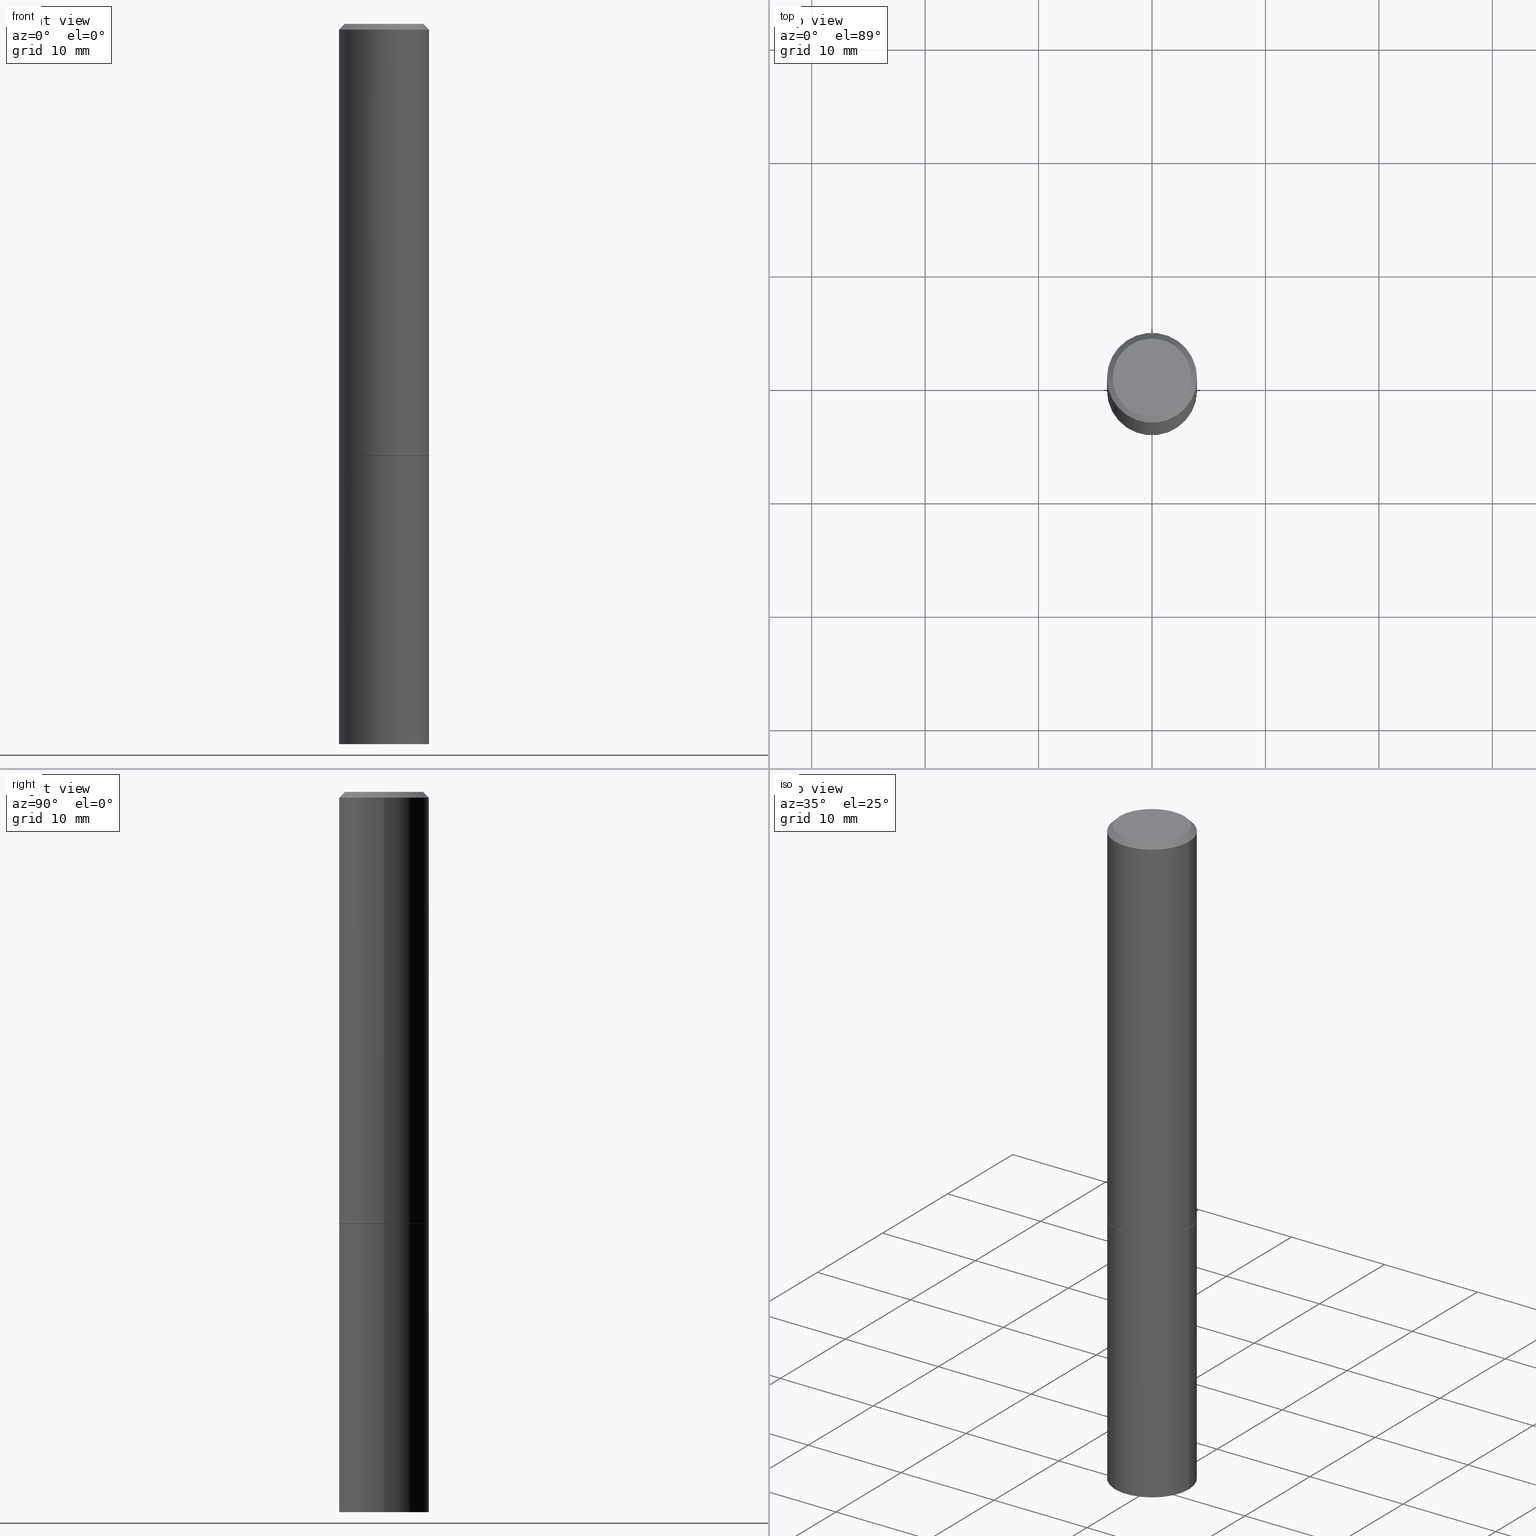
[diagram: canonical four-view strip — front | top / right | iso, engineering-drawing reading convention]
A machine part, canonical four-view strip (front | top / right | iso — engineering-drawing reading convention). The complete STEP part file that produces these views, byte-faithful:
ISO-10303-21;
HEADER;
FILE_DESCRIPTION (( 'STEP AP203' ),
    '1' );
FILE_NAME ('72973.STEP',
    '2024-02-29T05:59:20',
    ( '' ),
    ( '' ),
    'SwSTEP 2.0',
    'SolidWorks 2023',
    '' );
FILE_SCHEMA (( 'CONFIG_CONTROL_DESIGN' ));
ENDSEC;

DATA;
#1 = EDGE_CURVE ( 'NONE', #314, #195, #307, .T. ) ;
#2 = FACE_OUTER_BOUND ( 'NONE', #229, .T. ) ;
#3 = DIRECTION ( 'NONE',  ( -2.445468806185136597E-29, 3.491481338843145583E-15, 1.000000000000000000 ) ) ;
#4 = CARTESIAN_POINT ( 'NONE',  ( 4.890937612370281041E-31, -6.982962677686302702E-17, -0.02000000000000003511 ) ) ;
#5 = CONICAL_SURFACE ( 'NONE', #125, 0.1552499999999999991, 0.7853981633974141952 ) ;
#6 = FACE_OUTER_BOUND ( 'NONE', #188, .T. ) ;
#7 = DIRECTION ( 'NONE',  ( 0.000000000000000000, 0.000000000000000000, 1.000000000000000000 ) ) ;
#8 = APPROVAL_ROLE ( '' ) ;
#9 = ORIENTED_EDGE ( 'NONE', *, *, #219, .F. ) ;
#10 = AXIS2_PLACEMENT_3D ( 'NONE', #289, #342, #121 ) ;
#11 = UNCERTAINTY_MEASURE_WITH_UNIT (LENGTH_MEASURE( 1.000000000000000082E-05 ), #74, 'distance_accuracy_value', 'NONE');
#12 = ORIENTED_EDGE ( 'NONE', *, *, #340, .T. ) ;
#13 = ORIENTED_EDGE ( 'NONE', *, *, #230, .T. ) ;
#14 = CC_DESIGN_DATE_AND_TIME_ASSIGNMENT ( #100, #322, ( #20 ) ) ;
#15 = PERSON_AND_ORGANIZATION ( #155, #24 ) ;
#16 = EDGE_LOOP ( 'NONE', ( #225, #65, #130, #18 ) ) ;
#17 = CIRCLE ( 'NONE', #282, 0.1562500000000000000 ) ;
#18 = ORIENTED_EDGE ( 'NONE', *, *, #356, .F. ) ;
#19 = MANIFOLD_SOLID_BREP ( 'Body-Move/Copy2[2]', #71 ) ;
#20 = PRODUCT_DEFINITION ( 'UNKNOWN', '', #238, #66 ) ;
#21 = LINE ( 'NONE', #332, #179 ) ;
#22 = CARTESIAN_POINT ( 'NONE',  ( 0.000000000000000000, 0.000000000000000000, 0.000000000000000000 ) ) ;
#23 = DIRECTION ( 'NONE',  ( -0.7071067811865466846, 2.468850131082247989E-15, -0.7071067811865483499 ) ) ;
#24 = ORGANIZATION ( 'UNSPECIFIED', 'UNSPECIFIED', '' ) ;
#25 = PERSON_AND_ORGANIZATION ( #155, #24 ) ;
#26 = ORIENTED_EDGE ( 'NONE', *, *, #55, .F. ) ;
#27 = FACE_OUTER_BOUND ( 'NONE', #355, .T. ) ;
#28 = DIRECTION ( 'NONE',  ( -1.000000000000000000, 6.982962677686267499E-15, 0.000000000000000000 ) ) ;
#29 = AXIS2_PLACEMENT_3D ( 'NONE', #203, #175, #285 ) ;
#30 = DIRECTION ( 'NONE',  ( -2.445468806185136597E-29, 3.491481338843145583E-15, 1.000000000000000000 ) ) ;
#31 = DIRECTION ( 'NONE',  ( 1.000000000000000000, -6.982962677686266711E-15, 4.876176775795936353E-29 ) ) ;
#32 = DIRECTION ( 'NONE',  ( -2.445468806185136877E-29, 3.491481338843145188E-15, 1.000000000000000000 ) ) ;
#33 = FACE_OUTER_BOUND ( 'NONE', #16, .T. ) ;
#34 = PERSON_AND_ORGANIZATION_ROLE ( 'creator' ) ;
#35 = ORIENTED_EDGE ( 'NONE', *, *, #292, .F. ) ;
#36 = EDGE_CURVE ( 'NONE', #221, #69, #79, .T. ) ;
#37 = EDGE_LOOP ( 'NONE', ( #268, #164, #311, #252 ) ) ;
#38 = CONICAL_SURFACE ( 'NONE', #317, 0.1562499999999998335, 0.7853981633974471688 ) ;
#39 = CC_DESIGN_APPROVAL ( #365, ( #20 ) ) ;
#40 = PRODUCT_DEFINITION_SHAPE ( 'NONE', 'NONE',  #20 ) ;
#41 = CC_DESIGN_PERSON_AND_ORGANIZATION_ASSIGNMENT ( #302, #247, ( #298 ) ) ;
#42 = ORIENTED_EDGE ( 'NONE', *, *, #91, .F. ) ;
#43 = CALENDAR_DATE ( 2024, 29, 2 ) ;
#44 = ORIENTED_EDGE ( 'NONE', *, *, #57, .T. ) ;
#45 =( LENGTH_UNIT ( ) NAMED_UNIT ( * ) SI_UNIT ( $, .METRE. ) );
#46 = AXIS2_PLACEMENT_3D ( 'NONE', #281, #284, #48 ) ;
#47 =( GEOMETRIC_REPRESENTATION_CONTEXT ( 3 ) GLOBAL_UNCERTAINTY_ASSIGNED_CONTEXT ( ( #11 ) ) GLOBAL_UNIT_ASSIGNED_CONTEXT ( ( #74, #267, #129 ) ) REPRESENTATION_CONTEXT ( 'NONE', 'WORKASPACE' ) );
#48 = DIRECTION ( 'NONE',  ( 1.000000000000000000, -6.982962677686269077E-15, 0.000000000000000000 ) ) ;
#49 = DIRECTION ( 'NONE',  ( -2.445468806185136597E-29, 3.491481338843145583E-15, 1.000000000000000000 ) ) ;
#50 = CARTESIAN_POINT ( 'NONE',  ( 0.1362499999999998435, -1.038262645562516941E-15, 4.268512490107368508E-18 ) ) ;
#51 = CIRCLE ( 'NONE', #306, 0.1362499999999998435 ) ;
#52 = DIRECTION ( 'NONE',  ( -2.445468806185136597E-29, 3.491481338843145583E-15, 1.000000000000000000 ) ) ;
#53 = APPROVAL_PERSON_ORGANIZATION ( #25, #93, #358 ) ;
#54 = PLANE ( 'NONE',  #264 ) ;
#55 = EDGE_CURVE ( 'NONE', #301, #314, #115, .T. ) ;
#56 = CARTESIAN_POINT ( 'NONE',  ( 3.668203209277704895E-29, -5.237222008264718177E-15, -1.500000000000000222 ) ) ;
#57 = EDGE_CURVE ( 'NONE', #352, #163, #172, .T. ) ;
#58 = DIRECTION ( 'NONE',  ( 1.000000000000000000, -6.982962677686268288E-15, 0.000000000000000000 ) ) ;
#59 = VECTOR ( 'NONE', #277, 39.37007874015748143 ) ;
#60 = CC_DESIGN_APPROVAL ( #93, ( #198 ) ) ;
#61 = DIRECTION ( 'NONE',  ( -2.445468806185136597E-29, 3.491481338843145583E-15, 1.000000000000000000 ) ) ;
#62 = DIRECTION ( 'NONE',  ( -2.445468806185136597E-29, 3.491481338843145583E-15, 1.000000000000000000 ) ) ;
#63 = DIRECTION ( 'NONE',  ( -2.445468806185136597E-29, 3.491481338843145583E-15, 1.000000000000000000 ) ) ;
#64 = COORDINATED_UNIVERSAL_TIME_OFFSET ( 5, 0, .BEHIND. ) ;
#65 = ORIENTED_EDGE ( 'NONE', *, *, #83, .T. ) ;
#66 = DESIGN_CONTEXT ( 'detailed design', #166, 'design' ) ;
#67 = ORIENTED_EDGE ( 'NONE', *, *, #80, .F. ) ;
#68 = DIRECTION ( 'NONE',  ( -2.445468806185136597E-29, 3.491481338843145583E-15, 1.000000000000000000 ) ) ;
#69 = VERTEX_POINT ( 'NONE', #113 ) ;
#70 = CC_DESIGN_SECURITY_CLASSIFICATION ( #198, ( #238 ) ) ;
#71 = CLOSED_SHELL ( 'NONE', ( #280, #145, #176, #152, #205, #181, #178, #170 ) ) ;
#72 = CC_DESIGN_APPROVAL ( #319, ( #238 ) ) ;
#73 = VERTEX_POINT ( 'NONE', #337 ) ;
#74 =( CONVERSION_BASED_UNIT ( 'INCH', #156 ) LENGTH_UNIT ( ) NAMED_UNIT ( #303 ) );
#75 = ORIENTED_EDGE ( 'NONE', *, *, #83, .F. ) ;
#76 = CIRCLE ( 'NONE', #207, 0.1562500000000000000 ) ;
#77 = CALENDAR_DATE ( 2024, 29, 2 ) ;
#78 = DIRECTION ( 'NONE',  ( -2.445468806185136877E-29, 3.491481338843145188E-15, 1.000000000000000000 ) ) ;
#79 = LINE ( 'NONE', #111, #147 ) ;
#80 = EDGE_CURVE ( 'NONE', #301, #187, #21, .T. ) ;
#81 = FACE_OUTER_BOUND ( 'NONE', #214, .T. ) ;
#82 = VECTOR ( 'NONE', #23, 39.37007874015748143 ) ;
#83 = EDGE_CURVE ( 'NONE', #330, #221, #192, .T. ) ;
#84 = FACE_OUTER_BOUND ( 'NONE', #274, .T. ) ;
#85 = AXIS2_PLACEMENT_3D ( 'NONE', #56, #208, #286 ) ;
#86 = LINE ( 'NONE', #210, #165 ) ;
#87 = PRODUCT_RELATED_PRODUCT_CATEGORY ( 'detail', '', ( #298 ) ) ;
#88 = CARTESIAN_POINT ( 'NONE',  ( 0.000000000000000000, 0.000000000000000000, 0.000000000000000000 ) ) ;
#89 = DIRECTION ( 'NONE',  ( 1.000000000000000000, -6.982962677686266711E-15, 4.876176775795935232E-29 ) ) ;
#90 = AXIS2_PLACEMENT_3D ( 'NONE', #108, #133, #335 ) ;
#91 = EDGE_CURVE ( 'NONE', #314, #301, #120, .T. ) ;
#92 = DIRECTION ( 'NONE',  ( -2.438088387897960049E-29, 3.491481338843145188E-15, 1.000000000000000000 ) ) ;
#93 = APPROVAL ( #334, 'UNSPECIFIED' ) ;
#94 = DIRECTION ( 'NONE',  ( 2.438088387897960049E-29, -3.491481338843145188E-15, -1.000000000000000000 ) ) ;
#95 = COORDINATED_UNIVERSAL_TIME_OFFSET ( 5, 0, .BEHIND. ) ;
#96 = CIRCLE ( 'NONE', #10, 0.1362499999999998435 ) ;
#97 = CARTESIAN_POINT ( 'NONE',  ( 0.000000000000000000, 0.000000000000000000, 0.000000000000000000 ) ) ;
#98 = ORIENTED_EDGE ( 'NONE', *, *, #36, .F. ) ;
#99 = CC_DESIGN_PERSON_AND_ORGANIZATION_ASSIGNMENT ( #123, #351, ( #198 ) ) ;
#100 = DATE_AND_TIME ( #211, #240 ) ;
#101 = EDGE_LOOP ( 'NONE', ( #354, #12 ) ) ;
#102 = DATE_AND_TIME ( #293, #223 ) ;
#103 = ORIENTED_EDGE ( 'NONE', *, *, #91, .T. ) ;
#104 = AXIS2_PLACEMENT_3D ( 'NONE', #88, #242, #183 ) ;
#105 = APPROVAL_PERSON_ORGANIZATION ( #217, #319, #8 ) ;
#106 = EDGE_LOOP ( 'NONE', ( #26, #42 ) ) ;
#107 = DIRECTION ( 'NONE',  ( -2.445468806185136597E-29, 3.491481338843145583E-15, 1.000000000000000000 ) ) ;
#108 = CARTESIAN_POINT ( 'NONE',  ( 6.113672015462842613E-29, -8.728703347107864943E-15, -2.500000000000000000 ) ) ;
#109 = ADVANCED_FACE ( 'NONE', ( #255 ), #54, .T. ) ;
#110 = CONICAL_SURFACE ( 'NONE', #312, 0.1552499999999999991, 0.7853981633974141952 ) ;
#111 = CARTESIAN_POINT ( 'NONE',  ( 0.1552499999999999991, -6.321326963975512125E-15, -1.500000000000000222 ) ) ;
#112 = EDGE_CURVE ( 'NONE', #157, #73, #361, .T. ) ;
#113 = CARTESIAN_POINT ( 'NONE',  ( 0.1562500000000000000, -6.324818445314355132E-15, -1.499000000000000110 ) ) ;
#114 = DIRECTION ( 'NONE',  ( 1.000000000000000000, -6.982962677686269077E-15, 0.000000000000000000 ) ) ;
#115 = CIRCLE ( 'NONE', #46, 0.1562500000000000000 ) ;
#116 = CARTESIAN_POINT ( 'NONE',  ( 0.1552499999999999991, -6.321326963975512125E-15, -1.500000000000000222 ) ) ;
#117 = DIRECTION ( 'NONE',  ( -1.000000000000000000, 6.982962677686265922E-15, -4.876176775795935793E-29 ) ) ;
#118 = CARTESIAN_POINT ( 'NONE',  ( 0.1562500000000000000, -9.819791265496344905E-15, -2.500000000000000000 ) ) ;
#119 = CARTESIAN_POINT ( 'NONE',  ( -0.1562499999999999445, 1.110223024625156146E-15, -7.685836078523286956E-30 ) ) ;
#120 = CIRCLE ( 'NONE', #90, 0.1562500000000000000 ) ;
#121 = DIRECTION ( 'NONE',  ( 1.000000000000000000, -6.982962677686266711E-15, 4.876388394912424373E-29 ) ) ;
#122 = COORDINATED_UNIVERSAL_TIME_OFFSET ( 5, 0, .BEHIND. ) ;
#123 = PERSON_AND_ORGANIZATION ( #155, #24 ) ;
#124 = ORIENTED_EDGE ( 'NONE', *, *, #349, .T. ) ;
#125 = AXIS2_PLACEMENT_3D ( 'NONE', #320, #62, #58 ) ;
#126 = PERSON_AND_ORGANIZATION ( #155, #24 ) ;
#127 = ORIENTED_EDGE ( 'NONE', *, *, #359, .T. ) ;
#128 = ORIENTED_EDGE ( 'NONE', *, *, #1, .T. ) ;
#129 =( NAMED_UNIT ( * ) SI_UNIT ( $, .STERADIAN. ) SOLID_ANGLE_UNIT ( ) );
#130 = ORIENTED_EDGE ( 'NONE', *, *, #36, .T. ) ;
#131 = CLOSED_SHELL ( 'NONE', ( #236, #109, #232, #189 ) ) ;
#132 = ORIENTED_EDGE ( 'NONE', *, *, #55, .T. ) ;
#133 = DIRECTION ( 'NONE',  ( -2.445468806185136597E-29, 3.491481338843145583E-15, 1.000000000000000000 ) ) ;
#134 = CC_DESIGN_PERSON_AND_ORGANIZATION_ASSIGNMENT ( #273, #34, ( #238 ) ) ;
#135 = CARTESIAN_POINT ( 'NONE',  ( 3.668203209277704895E-29, -5.237222008264718177E-15, -1.500000000000000222 ) ) ;
#136 = AXIS2_PLACEMENT_3D ( 'NONE', #215, #68, #251 ) ;
#137 = DIRECTION ( 'NONE',  ( -2.445468806185136877E-29, 3.491481338843145188E-15, 1.000000000000000000 ) ) ;
#138 = ORIENTED_EDGE ( 'NONE', *, *, #112, .T. ) ;
#139 = EDGE_CURVE ( 'NONE', #187, #195, #17, .T. ) ;
#140 = CARTESIAN_POINT ( 'NONE',  ( 3.665757740471519853E-29, -5.233730526925875958E-15, -1.499000000000000110 ) ) ;
#141 = APPLICATION_CONTEXT ( 'configuration controlled 3d designs of mechanical parts and assemblies' ) ;
#142 = CARTESIAN_POINT ( 'NONE',  ( 3.668203209277704895E-29, -5.237222008264718177E-15, -1.500000000000000222 ) ) ;
#143 = DIRECTION ( 'NONE',  ( 1.000000000000000000, -6.982962677686265133E-15, 0.000000000000000000 ) ) ;
#144 = CARTESIAN_POINT ( 'NONE',  ( -0.1362499999999998435, 9.863434782231838318E-16, 4.268512490093635087E-18 ) ) ;
#145 = ADVANCED_FACE ( 'NONE', ( #233 ), #171, .T. ) ;
#146 = PLANE ( 'NONE',  #276 ) ;
#147 = VECTOR ( 'NONE', #196, 39.37007874015748854 ) ;
#148 = LOCAL_TIME ( 0, 59, 20.00000000000000000, #305 ) ;
#149 = MANIFOLD_SOLID_BREP ( 'Body-Move/Copy2[1]', #131 ) ;
#150 = EDGE_CURVE ( 'NONE', #69, #275, #76, .T. ) ;
#151 = FACE_OUTER_BOUND ( 'NONE', #37, .T. ) ;
#152 = ADVANCED_FACE ( 'NONE', ( #81 ), #197, .T. ) ;
#153 = PERSON_AND_ORGANIZATION_ROLE ( 'design_supplier' ) ;
#154 = EDGE_LOOP ( 'NONE', ( #216, #103, #360, #299 ) ) ;
#155 = PERSON ( 'UNSPECIFIED', 'UNSPECIFIED', 'UNSPECIFIED', ('UNSPECIFIED'), ('UNSPECIFIED'), ('UNSPECIFIED') ) ;
#156 = LENGTH_MEASURE_WITH_UNIT ( LENGTH_MEASURE( 0.02539999999999999897 ), #45 );
#157 = VERTEX_POINT ( 'NONE', #50 ) ;
#158 = CIRCLE ( 'NONE', #345, 0.1562499999999998335 ) ;
#159 = LOCAL_TIME ( 0, 59, 20.00000000000000000, #64 ) ;
#160 = APPROVAL_STATUS ( 'not_yet_approved' ) ;
#161 = ORIENTED_EDGE ( 'NONE', *, *, #290, .F. ) ;
#162 = DATE_AND_TIME ( #43, #159 ) ;
#163 = VERTEX_POINT ( 'NONE', #279 ) ;
#164 = ORIENTED_EDGE ( 'NONE', *, *, #356, .T. ) ;
#165 = VECTOR ( 'NONE', #180, 39.37007874015748854 ) ;
#166 = APPLICATION_CONTEXT ( 'configuration controlled 3d designs of mechanical parts and assemblies' ) ;
#167 = EDGE_CURVE ( 'NONE', #69, #73, #362, .T. ) ;
#168 = CALENDAR_DATE ( 2024, 29, 2 ) ;
#169 = CARTESIAN_POINT ( 'NONE',  ( -0.1562499999999998335, 1.021258291611615086E-15, -0.02000000000000003511 ) ) ;
#170 = ADVANCED_FACE ( 'NONE', ( #84 ), #363, .F. ) ;
#171 = CYLINDRICAL_SURFACE ( 'NONE', #244, 0.1562499999999999445 ) ;
#172 = LINE ( 'NONE', #169, #82 ) ;
#173 = VECTOR ( 'NONE', #231, 39.37007874015748143 ) ;
#174 = CARTESIAN_POINT ( 'NONE',  ( 0.1562499999999999445, -1.091087918388478779E-15, 7.619026212181146173E-30 ) ) ;
#175 = DIRECTION ( 'NONE',  ( 2.438088387897960049E-29, -3.491481338843145188E-15, -1.000000000000000000 ) ) ;
#176 = ADVANCED_FACE ( 'NONE', ( #27 ), #38, .T. ) ;
#177 = DIRECTION ( 'NONE',  ( -2.445468806185136597E-29, 3.491481338843145583E-15, 1.000000000000000000 ) ) ;
#178 = ADVANCED_FACE ( 'NONE', ( #6 ), #266, .F. ) ;
#179 = VECTOR ( 'NONE', #78, 39.37007874015748143 ) ;
#180 = DIRECTION ( 'NONE',  ( -0.7071067811865232589, 7.493145998870265808E-15, 0.7071067811865715536 ) ) ;
#181 = ADVANCED_FACE ( 'NONE', ( #33 ), #5, .T. ) ;
#182 = CARTESIAN_POINT ( 'NONE',  ( 0.000000000000000000, 0.000000000000000000, 0.000000000000000000 ) ) ;
#183 = DIRECTION ( 'NONE',  ( 1.000000000000000000, -6.982962677686266711E-15, 4.876176775795936353E-29 ) ) ;
#184 = CARTESIAN_POINT ( 'NONE',  ( -0.1562500000000000000, -5.872739653061135414E-15, -2.500000000000000000 ) ) ;
#185 = AXIS2_PLACEMENT_3D ( 'NONE', #200, #257, #201 ) ;
#186 = APPROVAL_DATE_TIME ( #162, #319 ) ;
#187 = VERTEX_POINT ( 'NONE', #235 ) ;
#188 = EDGE_LOOP ( 'NONE', ( #295, #75 ) ) ;
#189 = ADVANCED_FACE ( 'NONE', ( #261 ), #318, .T. ) ;
#190 = SECURITY_CLASSIFICATION_LEVEL ( 'unclassified' ) ;
#191 = LOCAL_TIME ( 0, 59, 20.00000000000000000, #271 ) ;
#192 = CIRCLE ( 'NONE', #338, 0.1552499999999999991 ) ;
#193 = DIRECTION ( 'NONE',  ( 1.000000000000000000, 0.000000000000000000, 0.000000000000000000 ) ) ;
#194 = ORIENTED_EDGE ( 'NONE', *, *, #150, .T. ) ;
#195 = VERTEX_POINT ( 'NONE', #343 ) ;
#196 = DIRECTION ( 'NONE',  ( 0.7071067811865232589, -2.468850131082003836E-15, 0.7071067811865715536 ) ) ;
#197 = CONICAL_SURFACE ( 'NONE', #185, 0.1562499999999998335, 0.7853981633974471688 ) ;
#198 = SECURITY_CLASSIFICATION ( '', '', #190 ) ;
#199 = DIRECTION ( 'NONE',  ( -1.000000000000000000, 6.982962677686265922E-15, -4.876176775795935793E-29 ) ) ;
#200 = CARTESIAN_POINT ( 'NONE',  ( 4.890937612370281041E-31, -6.982962677686302702E-17, -0.02000000000000003511 ) ) ;
#201 = DIRECTION ( 'NONE',  ( -1.000000000000000000, 6.982962677686267499E-15, 0.000000000000000000 ) ) ;
#202 = DATE_AND_TIME ( #77, #191 ) ;
#203 = CARTESIAN_POINT ( 'NONE',  ( 9.514286648347525771E-16, 0.1362499999999998435, -4.735800761723278502E-16 ) ) ;
#204 = DIRECTION ( 'NONE',  ( 1.000000000000000000, -6.982962677686266711E-15, 4.876388394912424373E-29 ) ) ;
#205 = ADVANCED_FACE ( 'NONE', ( #151 ), #316, .T. ) ;
#206 = CARTESIAN_POINT ( 'NONE',  ( 1.091087918388515658E-15, 0.1562499999999947820, -1.500000000000000666 ) ) ;
#207 = AXIS2_PLACEMENT_3D ( 'NONE', #140, #52, #331 ) ;
#208 = DIRECTION ( 'NONE',  ( -2.445468806185136597E-29, 3.491481338843145583E-15, 1.000000000000000000 ) ) ;
#209 = DIRECTION ( 'NONE',  ( 1.000000000000000000, -6.982962677686265922E-15, 4.876176775795935793E-29 ) ) ;
#210 = CARTESIAN_POINT ( 'NONE',  ( -0.1552499999999999991, -4.134104410997162644E-15, -1.500000000000000222 ) ) ;
#211 = CALENDAR_DATE ( 2024, 29, 2 ) ;
#212 = VECTOR ( 'NONE', #32, 39.37007874015748143 ) ;
#213 = AXIS2_PLACEMENT_3D ( 'NONE', #296, #325, #224 ) ;
#214 = EDGE_LOOP ( 'NONE', ( #357, #35, #44, #127 ) ) ;
#215 = CARTESIAN_POINT ( 'NONE',  ( 3.665757740471519853E-29, -5.233730526925875958E-15, -1.499000000000000110 ) ) ;
#216 = ORIENTED_EDGE ( 'NONE', *, *, #1, .F. ) ;
#217 = PERSON_AND_ORGANIZATION ( #155, #24 ) ;
#218 = ORIENTED_EDGE ( 'NONE', *, *, #150, .F. ) ;
#219 = EDGE_CURVE ( 'NONE', #157, #352, #96, .T. ) ;
#220 = PERSON_AND_ORGANIZATION ( #155, #24 ) ;
#221 = VERTEX_POINT ( 'NONE', #116 ) ;
#222 = VECTOR ( 'NONE', #137, 39.37007874015748143 ) ;
#223 = LOCAL_TIME ( 0, 59, 20.00000000000000000, #122 ) ;
#224 = DIRECTION ( 'NONE',  ( 1.000000000000000000, -6.982962677686265133E-15, 0.000000000000000000 ) ) ;
#225 = ORIENTED_EDGE ( 'NONE', *, *, #246, .F. ) ;
#226 = DIRECTION ( 'NONE',  ( 1.000000000000000000, -6.982962677686266711E-15, 4.876176775795935232E-29 ) ) ;
#227 = DIRECTION ( 'NONE',  ( 2.438088387897960049E-29, -3.491481338843145188E-15, -1.000000000000000000 ) ) ;
#228 = AXIS2_PLACEMENT_3D ( 'NONE', #347, #61, #31 ) ;
#229 = EDGE_LOOP ( 'NONE', ( #132, #128, #248, #67 ) ) ;
#230 = EDGE_CURVE ( 'NONE', #275, #163, #263, .T. ) ;
#231 = DIRECTION ( 'NONE',  ( 0.7071067811865466846, -7.319954787623252890E-15, -0.7071067811865483499 ) ) ;
#232 = ADVANCED_FACE ( 'NONE', ( #241 ), #146, .F. ) ;
#233 = FACE_OUTER_BOUND ( 'NONE', #294, .T. ) ;
#234 = CARTESIAN_POINT ( 'NONE',  ( 3.668203209277704895E-29, -5.237222008264718177E-15, -1.500000000000000222 ) ) ;
#235 = CARTESIAN_POINT ( 'NONE',  ( 0.1562500000000000000, -6.328309926653198139E-15, -1.500000000000000222 ) ) ;
#236 = ADVANCED_FACE ( 'NONE', ( #2 ), #366, .T. ) ;
#237 = DIRECTION ( 'NONE',  ( 1.000000000000000000, -6.982962677686269077E-15, 0.000000000000000000 ) ) ;
#238 = PRODUCT_DEFINITION_FORMATION_WITH_SPECIFIED_SOURCE ( 'ANY', '', #298, .NOT_KNOWN. ) ;
#239 = AXIS2_PLACEMENT_3D ( 'NONE', #182, #348, #89 ) ;
#240 = LOCAL_TIME ( 0, 59, 20.00000000000000000, #95 ) ;
#241 = FACE_OUTER_BOUND ( 'NONE', #101, .T. ) ;
#242 = DIRECTION ( 'NONE',  ( -2.445468806185136597E-29, 3.491481338843145583E-15, 1.000000000000000000 ) ) ;
#243 = APPROVAL_DATE_TIME ( #102, #365 ) ;
#244 = AXIS2_PLACEMENT_3D ( 'NONE', #22, #333, #226 ) ;
#245 = AXIS2_PLACEMENT_3D ( 'NONE', #97, #7, #193 ) ;
#246 = EDGE_CURVE ( 'NONE', #330, #275, #86, .T. ) ;
#247 = PERSON_AND_ORGANIZATION_ROLE ( 'design_owner' ) ;
#248 = ORIENTED_EDGE ( 'NONE', *, *, #139, .F. ) ;
#249 = APPROVAL_STATUS ( 'not_yet_approved' ) ;
#250 = ORIENTED_EDGE ( 'NONE', *, *, #57, .F. ) ;
#251 = DIRECTION ( 'NONE',  ( 1.000000000000000000, -6.982962677686269077E-15, 0.000000000000000000 ) ) ;
#252 = ORIENTED_EDGE ( 'NONE', *, *, #359, .F. ) ;
#253 = ORIENTED_EDGE ( 'NONE', *, *, #292, .T. ) ;
#254 = CARTESIAN_POINT ( 'NONE',  ( 1.091087918388540310E-15, 0.1562499999999912570, -2.500000000000000444 ) ) ;
#255 = FACE_OUTER_BOUND ( 'NONE', #106, .T. ) ;
#256 = DATE_AND_TIME ( #168, #148 ) ;
#257 = DIRECTION ( 'NONE',  ( 2.445468806185136597E-29, -3.491481338843145583E-15, -1.000000000000000000 ) ) ;
#258 = CC_DESIGN_PERSON_AND_ORGANIZATION_ASSIGNMENT ( #15, #153, ( #238 ) ) ;
#259 = CARTESIAN_POINT ( 'NONE',  ( -0.1562500000000000000, 1.110223024625156540E-15, -7.685836078523291160E-30 ) ) ;
#260 = CARTESIAN_POINT ( 'NONE',  ( 4.890937612370281041E-31, -6.982962677686302702E-17, -0.02000000000000003511 ) ) ;
#261 = FACE_OUTER_BOUND ( 'NONE', #154, .T. ) ;
#262 = CARTESIAN_POINT ( 'NONE',  ( -1.043851414335219820E-46, 1.490343170380447200E-32, 4.268512490100411279E-18 ) ) ;
#263 = LINE ( 'NONE', #119, #212 ) ;
#264 = AXIS2_PLACEMENT_3D ( 'NONE', #254, #227, #199 ) ;
#265 = AXIS2_PLACEMENT_3D ( 'NONE', #315, #177, #237 ) ;
#266 = PLANE ( 'NONE',  #270 ) ;
#267 =( NAMED_UNIT ( * ) PLANE_ANGLE_UNIT ( ) SI_UNIT ( $, .RADIAN. ) );
#268 = ORIENTED_EDGE ( 'NONE', *, *, #230, .F. ) ;
#269 = APPLICATION_PROTOCOL_DEFINITION ( 'international standard', 'config_control_design', 1994, #166 ) ;
#270 = AXIS2_PLACEMENT_3D ( 'NONE', #142, #92, #209 ) ;
#271 = COORDINATED_UNIVERSAL_TIME_OFFSET ( 5, 0, .BEHIND. ) ;
#272 = ORIENTED_EDGE ( 'NONE', *, *, #219, .T. ) ;
#273 = PERSON_AND_ORGANIZATION ( #155, #24 ) ;
#274 = EDGE_LOOP ( 'NONE', ( #253, #272 ) ) ;
#275 = VERTEX_POINT ( 'NONE', #287 ) ;
#276 = AXIS2_PLACEMENT_3D ( 'NONE', #206, #94, #117 ) ;
#277 = DIRECTION ( 'NONE',  ( -2.445468806185136877E-29, 3.491481338843145188E-15, 1.000000000000000000 ) ) ;
#278 = DATE_TIME_ROLE ( 'classification_date' ) ;
#279 = CARTESIAN_POINT ( 'NONE',  ( -0.1562499999999998335, 1.021258291611615086E-15, -0.02000000000000003511 ) ) ;
#280 = ADVANCED_FACE ( 'NONE', ( #321 ), #110, .T. ) ;
#281 = CARTESIAN_POINT ( 'NONE',  ( 6.113672015462842613E-29, -8.728703347107864943E-15, -2.500000000000000000 ) ) ;
#282 = AXIS2_PLACEMENT_3D ( 'NONE', #308, #49, #114 ) ;
#283 = SHAPE_DEFINITION_REPRESENTATION ( #40, #327 ) ;
#284 = DIRECTION ( 'NONE',  ( -2.445468806185136597E-29, 3.491481338843145583E-15, 1.000000000000000000 ) ) ;
#285 = DIRECTION ( 'NONE',  ( -1.000000000000000000, 6.982962677686265922E-15, -4.876176775795935793E-29 ) ) ;
#286 = DIRECTION ( 'NONE',  ( 1.000000000000000000, -6.982962677686268288E-15, 0.000000000000000000 ) ) ;
#287 = CARTESIAN_POINT ( 'NONE',  ( -0.1562500000000000000, -1.541557052226212102E-15, -1.499000000000000110 ) ) ;
#288 = DIRECTION ( 'NONE',  ( 1.000000000000000000, -6.982962677686268288E-15, 0.000000000000000000 ) ) ;
#289 = CARTESIAN_POINT ( 'NONE',  ( -1.043851414335219820E-46, 1.490343170380447200E-32, 4.268512490100411279E-18 ) ) ;
#290 = EDGE_CURVE ( 'NONE', #73, #163, #158, .T. ) ;
#291 = CARTESIAN_POINT ( 'NONE',  ( -0.1552499999999999991, -4.128805956648940242E-15, -1.500000000000000222 ) ) ;
#292 = EDGE_CURVE ( 'NONE', #352, #157, #51, .T. ) ;
#293 = CALENDAR_DATE ( 2024, 29, 2 ) ;
#294 = EDGE_LOOP ( 'NONE', ( #194, #13, #161, #326 ) ) ;
#295 = ORIENTED_EDGE ( 'NONE', *, *, #349, .F. ) ;
#296 = CARTESIAN_POINT ( 'NONE',  ( 4.890937612370281041E-31, -6.982962677686302702E-17, -0.02000000000000003511 ) ) ;
#297 = CIRCLE ( 'NONE', #85, 0.1552499999999999991 ) ;
#298 = PRODUCT ( '72973', '72973', '', ( #329 ) ) ;
#299 = ORIENTED_EDGE ( 'NONE', *, *, #340, .F. ) ;
#300 = PERSON_AND_ORGANIZATION_ROLE ( 'creator' ) ;
#301 = VERTEX_POINT ( 'NONE', #118 ) ;
#302 = PERSON_AND_ORGANIZATION ( #155, #24 ) ;
#303 = DIMENSIONAL_EXPONENTS ( 1.000000000000000000, 0.000000000000000000, 0.000000000000000000, 0.000000000000000000, 0.000000000000000000, 0.000000000000000000, 0.000000000000000000 ) ;
#304 = EDGE_LOOP ( 'NONE', ( #124, #328, #218, #98 ) ) ;
#305 = COORDINATED_UNIVERSAL_TIME_OFFSET ( 5, 0, .BEHIND. ) ;
#306 = AXIS2_PLACEMENT_3D ( 'NONE', #262, #3, #204 ) ;
#307 = LINE ( 'NONE', #259, #59 ) ;
#308 = CARTESIAN_POINT ( 'NONE',  ( 3.668203209277704895E-29, -5.237222008264718177E-15, -1.500000000000000222 ) ) ;
#309 = CC_DESIGN_PERSON_AND_ORGANIZATION_ASSIGNMENT ( #220, #300, ( #20 ) ) ;
#310 = CARTESIAN_POINT ( 'NONE',  ( 0.1562499999999998335, -1.141782438928663724E-15, -0.02000000000000003511 ) ) ;
#311 = ORIENTED_EDGE ( 'NONE', *, *, #167, .T. ) ;
#312 = AXIS2_PLACEMENT_3D ( 'NONE', #234, #63, #288 ) ;
#313 = CIRCLE ( 'NONE', #265, 0.1562500000000000000 ) ;
#314 = VERTEX_POINT ( 'NONE', #184 ) ;
#315 = CARTESIAN_POINT ( 'NONE',  ( 3.668203209277704895E-29, -5.237222008264718177E-15, -1.500000000000000222 ) ) ;
#316 = CYLINDRICAL_SURFACE ( 'NONE', #239, 0.1562499999999999445 ) ;
#317 = AXIS2_PLACEMENT_3D ( 'NONE', #260, #341, #28 ) ;
#318 = CYLINDRICAL_SURFACE ( 'NONE', #104, 0.1562500000000000000 ) ;
#319 = APPROVAL ( #249, 'UNSPECIFIED' ) ;
#320 = CARTESIAN_POINT ( 'NONE',  ( 3.668203209277704895E-29, -5.237222008264718177E-15, -1.500000000000000222 ) ) ;
#321 = FACE_OUTER_BOUND ( 'NONE', #304, .T. ) ;
#322 = DATE_TIME_ROLE ( 'creation_date' ) ;
#323 = APPLICATION_PROTOCOL_DEFINITION ( 'international standard', 'config_control_design', 1994, #141 ) ;
#324 = ORIENTED_EDGE ( 'NONE', *, *, #290, .T. ) ;
#325 = DIRECTION ( 'NONE',  ( -2.445468806185136597E-29, 3.491481338843145583E-15, 1.000000000000000000 ) ) ;
#326 = ORIENTED_EDGE ( 'NONE', *, *, #167, .F. ) ;
#327 = ADVANCED_BREP_SHAPE_REPRESENTATION ( '72973', ( #149, #19, #245 ), #47 ) ;
#328 = ORIENTED_EDGE ( 'NONE', *, *, #246, .T. ) ;
#329 = MECHANICAL_CONTEXT ( 'NONE', #141, 'mechanical' ) ;
#330 = VERTEX_POINT ( 'NONE', #291 ) ;
#331 = DIRECTION ( 'NONE',  ( 1.000000000000000000, -6.982962677686269077E-15, 0.000000000000000000 ) ) ;
#332 = CARTESIAN_POINT ( 'NONE',  ( 0.1562500000000000000, -1.091087918388479174E-15, 7.619026212181150377E-30 ) ) ;
#333 = DIRECTION ( 'NONE',  ( -2.445468806185136597E-29, 3.491481338843145583E-15, 1.000000000000000000 ) ) ;
#334 = APPROVAL_STATUS ( 'not_yet_approved' ) ;
#335 = DIRECTION ( 'NONE',  ( 1.000000000000000000, -6.982962677686269077E-15, 0.000000000000000000 ) ) ;
#336 = APPROVAL_DATE_TIME ( #256, #93 ) ;
#337 = CARTESIAN_POINT ( 'NONE',  ( 0.1562499999999998335, -1.141782438928663724E-15, -0.02000000000000003511 ) ) ;
#338 = AXIS2_PLACEMENT_3D ( 'NONE', #135, #107, #364 ) ;
#339 = CIRCLE ( 'NONE', #136, 0.1562500000000000000 ) ;
#340 = EDGE_CURVE ( 'NONE', #195, #187, #313, .T. ) ;
#341 = DIRECTION ( 'NONE',  ( 2.445468806185136597E-29, -3.491481338843145583E-15, -1.000000000000000000 ) ) ;
#342 = DIRECTION ( 'NONE',  ( -2.445468806185136597E-29, 3.491481338843145583E-15, 1.000000000000000000 ) ) ;
#343 = CARTESIAN_POINT ( 'NONE',  ( -0.1562500000000000000, -5.872739653061135414E-15, -1.500000000000000222 ) ) ;
#344 = CC_DESIGN_DATE_AND_TIME_ASSIGNMENT ( #202, #278, ( #198 ) ) ;
#345 = AXIS2_PLACEMENT_3D ( 'NONE', #4, #30, #143 ) ;
#346 = CIRCLE ( 'NONE', #213, 0.1562499999999998335 ) ;
#347 = CARTESIAN_POINT ( 'NONE',  ( 0.000000000000000000, 0.000000000000000000, 0.000000000000000000 ) ) ;
#348 = DIRECTION ( 'NONE',  ( -2.445468806185136597E-29, 3.491481338843145583E-15, 1.000000000000000000 ) ) ;
#349 = EDGE_CURVE ( 'NONE', #221, #330, #297, .T. ) ;
#350 = APPROVAL_PERSON_ORGANIZATION ( #126, #365, #353 ) ;
#351 = PERSON_AND_ORGANIZATION_ROLE ( 'classification_officer' ) ;
#352 = VERTEX_POINT ( 'NONE', #144 ) ;
#353 = APPROVAL_ROLE ( '' ) ;
#354 = ORIENTED_EDGE ( 'NONE', *, *, #139, .T. ) ;
#355 = EDGE_LOOP ( 'NONE', ( #9, #138, #324, #250 ) ) ;
#356 = EDGE_CURVE ( 'NONE', #275, #69, #339, .T. ) ;
#357 = ORIENTED_EDGE ( 'NONE', *, *, #112, .F. ) ;
#358 = APPROVAL_ROLE ( '' ) ;
#359 = EDGE_CURVE ( 'NONE', #163, #73, #346, .T. ) ;
#360 = ORIENTED_EDGE ( 'NONE', *, *, #80, .T. ) ;
#361 = LINE ( 'NONE', #310, #173 ) ;
#362 = LINE ( 'NONE', #174, #222 ) ;
#363 = PLANE ( 'NONE',  #29 ) ;
#364 = DIRECTION ( 'NONE',  ( 1.000000000000000000, -6.982962677686268288E-15, 0.000000000000000000 ) ) ;
#365 = APPROVAL ( #160, 'UNSPECIFIED' ) ;
#366 = CYLINDRICAL_SURFACE ( 'NONE', #228, 0.1562500000000000000 ) ;
ENDSEC;
END-ISO-10303-21;
